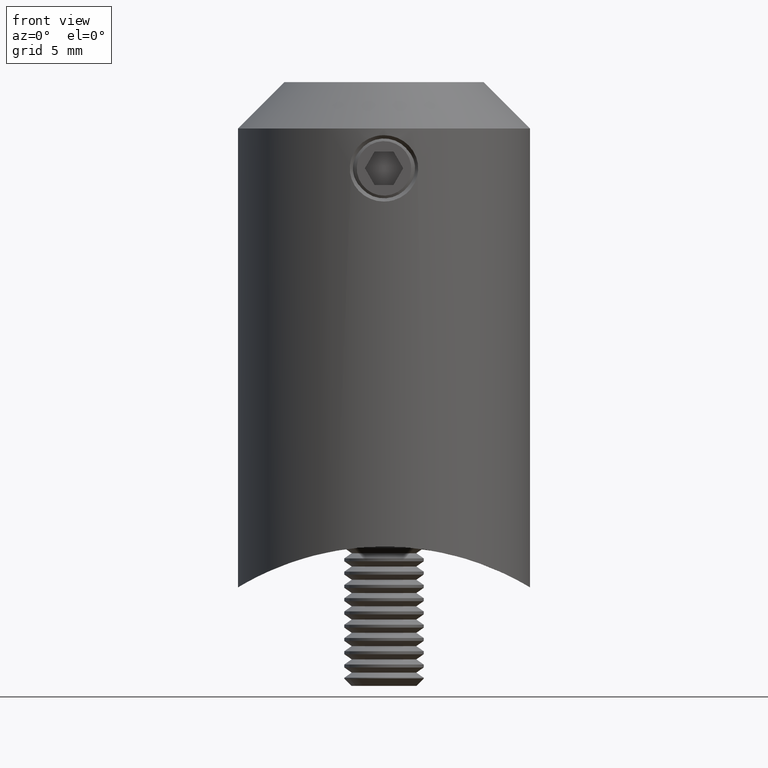
[diagram: clean part render]
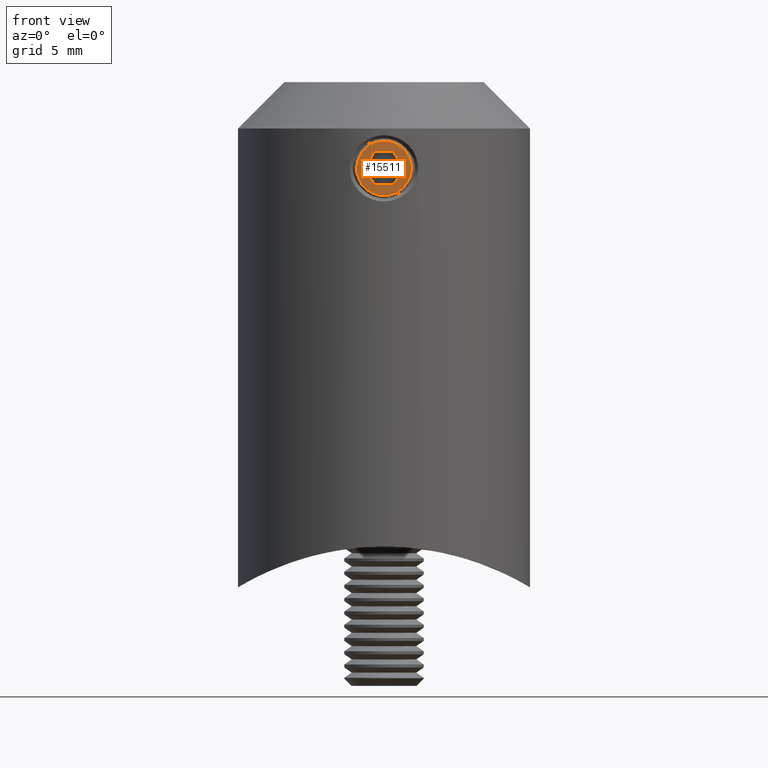
[diagram: same view with one face highlighted and labeled with its STEP entity id]
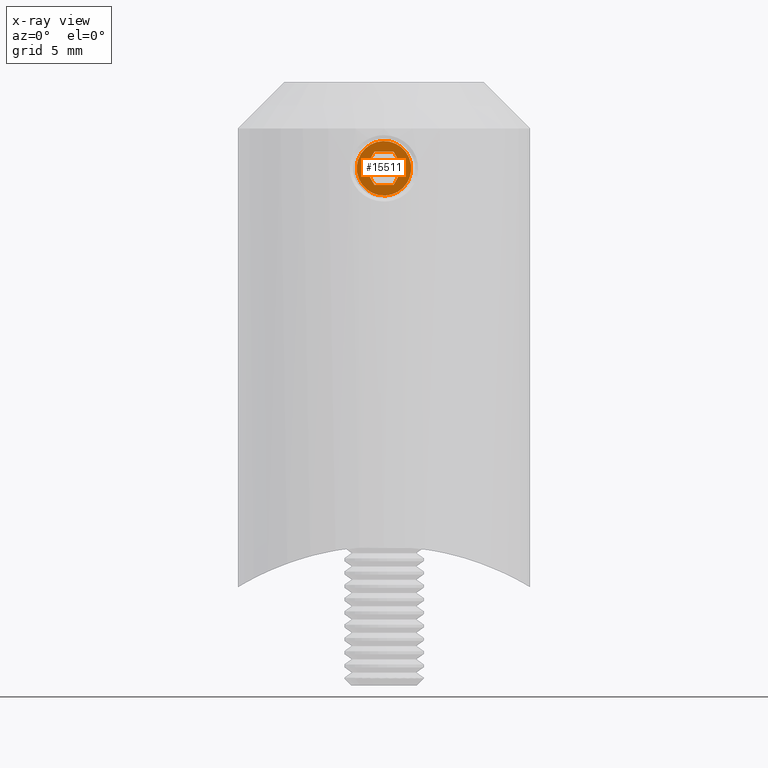
[diagram: x-ray of the same camera — body ghosted, the highlighted face saturated]
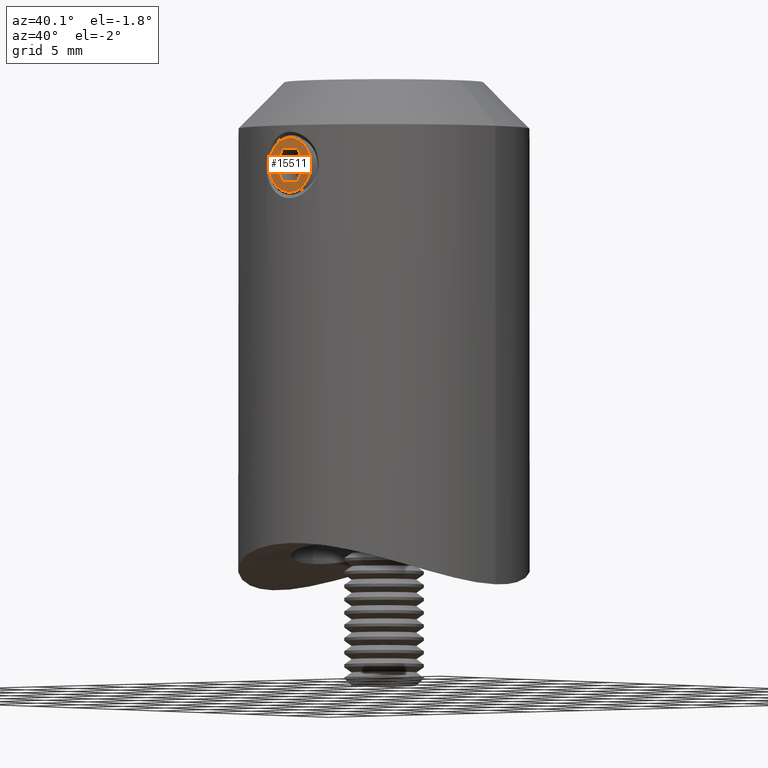
[diagram: same view with one face highlighted and labeled with its STEP entity id]
A machine part, front view. The second image highlights one B-rep face of the part: STEP entity #15511.
The next image is the same camera in x-ray: the body ghosted, the highlighted face saturated — about 0% of this face is hidden behind the body in this view.
A second angle (auxiliary view) of the same face is appended — the face is thin or edge-on in the first view.
In plain terms, the highlighted planar face has unit normal (-0, -1, 0).
Its self-contained STEP definition (entity closure, byte-faithful):
#456 = FACE_OUTER_BOUND ( 'NONE', #13698, .T. ) ;
#1257 = CIRCLE ( 'NONE', #5399, 2.055000000000000604 ) ;
#1601 = ORIENTED_EDGE ( 'NONE', *, *, #10894, .F. ) ;
#1974 = ORIENTED_EDGE ( 'NONE', *, *, #8468, .F. ) ;
#2259 = DIRECTION ( 'NONE',  ( 0.000000000000000000, -5.551115123125783935E-17, -1.000000000000000000 ) ) ;
#2526 = VECTOR ( 'NONE', #8169, 1000.000000000000000 ) ;
#2937 = EDGE_CURVE ( 'NONE', #10760, #17261, #10866, .T. ) ;
#3006 = VERTEX_POINT ( 'NONE', #15060 ) ;
#3376 = DIRECTION ( 'NONE',  ( -1.000000000000000000, 0.000000000000000000, 0.000000000000000000 ) ) ;
#3451 = VECTOR ( 'NONE', #11684, 1000.000000000000114 ) ;
#3499 = ORIENTED_EDGE ( 'NONE', *, *, #16337, .T. ) ;
#3515 = PLANE ( 'NONE',  #7130 ) ;
#3676 = VECTOR ( 'NONE', #4716, 1000.000000000000000 ) ;
#3684 = DIRECTION ( 'NONE',  ( -1.000000000000000000, -0.000000000000000000, 0.000000000000000000 ) ) ;
#3914 = DIRECTION ( 'NONE',  ( 0.000000000000000000, 5.551115123125783935E-17, 1.000000000000000000 ) ) ;
#3929 = CARTESIAN_POINT ( 'NONE',  ( 0.000000000000000000, -1.249999999999997558, 0.7216878364870310536 ) ) ;
#3994 = DIRECTION ( 'NONE',  ( 0.000000000000000000, -5.551115123125783935E-17, -1.000000000000000000 ) ) ;
#4212 = VECTOR ( 'NONE', #2259, 1000.000000000000000 ) ;
#4313 = LINE ( 'NONE', #16845, #8012 ) ;
#4716 = DIRECTION ( 'NONE',  ( 0.000000000000000000, -0.8660254037844383745, 0.5000000000000004441 ) ) ;
#4842 = VERTEX_POINT ( 'NONE', #17480 ) ;
#5015 = CARTESIAN_POINT ( 'NONE',  ( 0.000000000000000000, 0.000000000000000000, 0.000000000000000000 ) ) ;
#5399 = AXIS2_PLACEMENT_3D ( 'NONE', #8397, #16413, #3914 ) ;
#5645 = LINE ( 'NONE', #14178, #3676 ) ;
#6251 = EDGE_CURVE ( 'NONE', #7765, #9125, #20172, .T. ) ;
#7130 = AXIS2_PLACEMENT_3D ( 'NONE', #5015, #3376, #14284 ) ;
#7199 = LINE ( 'NONE', #14456, #2526 ) ;
#7765 = VERTEX_POINT ( 'NONE', #7890 ) ;
#7890 = CARTESIAN_POINT ( 'NONE',  ( 0.000000000000000000, -1.196571488238366919E-16, -2.055000000000001048 ) ) ;
#8012 = VECTOR ( 'NONE', #13734, 1000.000000000000000 ) ;
#8169 = DIRECTION ( 'NONE',  ( 0.000000000000000000, -0.8660254037844387076, -0.4999999999999998890 ) ) ;
#8301 = CARTESIAN_POINT ( 'NONE',  ( 0.000000000000000000, 0.000000000000000000, 0.000000000000000000 ) ) ;
#8397 = CARTESIAN_POINT ( 'NONE',  ( 0.000000000000000000, 0.000000000000000000, 0.000000000000000000 ) ) ;
#8468 = EDGE_CURVE ( 'NONE', #4842, #9644, #4313, .T. ) ;
#8698 = ORIENTED_EDGE ( 'NONE', *, *, #13358, .T. ) ;
#9125 = VERTEX_POINT ( 'NONE', #20301 ) ;
#9644 = VERTEX_POINT ( 'NONE', #9921 ) ;
#9779 = CARTESIAN_POINT ( 'NONE',  ( 0.000000000000000000, 1.249999999999999334, 0.7216878364870032980 ) ) ;
#9921 = CARTESIAN_POINT ( 'NONE',  ( 0.000000000000000000, 1.734723475976807094E-15, 1.443375672974062107 ) ) ;
#10117 = ORIENTED_EDGE ( 'NONE', *, *, #14671, .T. ) ;
#10760 = VERTEX_POINT ( 'NONE', #13419 ) ;
#10866 = LINE ( 'NONE', #17974, #3451 ) ;
#10894 = EDGE_CURVE ( 'NONE', #14384, #17261, #7199, .T. ) ;
#11631 = CARTESIAN_POINT ( 'NONE',  ( 0.000000000000000000, 1.250000000000007994, -0.7216878364870449314 ) ) ;
#11684 = DIRECTION ( 'NONE',  ( 0.000000000000000000, 0.8660254037844384856, -0.5000000000000003331 ) ) ;
#12090 = EDGE_CURVE ( 'NONE', #3006, #14384, #12844, .T. ) ;
#12844 = LINE ( 'NONE', #9779, #4212 ) ;
#12993 = CARTESIAN_POINT ( 'NONE',  ( 0.000000000000000000, 5.204170427930421283E-15, -1.443375672974079427 ) ) ;
#13358 = EDGE_CURVE ( 'NONE', #9125, #7765, #1257, .T. ) ;
#13419 = CARTESIAN_POINT ( 'NONE',  ( 0.000000000000000000, -1.250000000000001110, -0.7216878364870622509 ) ) ;
#13698 = EDGE_LOOP ( 'NONE', ( #19170, #8698 ) ) ;
#13734 = DIRECTION ( 'NONE',  ( 0.000000000000000000, 0.8660254037844387076, 0.4999999999999998890 ) ) ;
#14178 = CARTESIAN_POINT ( 'NONE',  ( 0.000000000000000000, 1.249999999999999334, 0.7216878364870032980 ) ) ;
#14284 = DIRECTION ( 'NONE',  ( 0.000000000000000000, 5.551115123125783935E-17, 1.000000000000000000 ) ) ;
#14384 = VERTEX_POINT ( 'NONE', #11631 ) ;
#14456 = CARTESIAN_POINT ( 'NONE',  ( 0.000000000000000000, 1.250000000000007994, -0.7216878364870449314 ) ) ;
#14666 = DIRECTION ( 'NONE',  ( 0.000000000000000000, 5.551115123125783935E-17, 1.000000000000000000 ) ) ;
#14671 = EDGE_CURVE ( 'NONE', #3006, #9644, #5645, .T. ) ;
#15060 = CARTESIAN_POINT ( 'NONE',  ( 0.000000000000000000, 1.249999999999999334, 0.7216878364870032980 ) ) ;
#15376 = AXIS2_PLACEMENT_3D ( 'NONE', #8301, #3684, #14666 ) ;
#15511 = ADVANCED_FACE ( 'NONE', ( #456, #18229 ), #3515, .T. ) ;
#16337 = EDGE_CURVE ( 'NONE', #4842, #10760, #16467, .T. ) ;
#16413 = DIRECTION ( 'NONE',  ( -1.000000000000000000, -0.000000000000000000, 0.000000000000000000 ) ) ;
#16467 = LINE ( 'NONE', #3929, #16722 ) ;
#16722 = VECTOR ( 'NONE', #3994, 1000.000000000000000 ) ;
#16845 = CARTESIAN_POINT ( 'NONE',  ( 0.000000000000000000, -1.249999999999997558, 0.7216878364870310536 ) ) ;
#16918 = ORIENTED_EDGE ( 'NONE', *, *, #2937, .T. ) ;
#16979 = ORIENTED_EDGE ( 'NONE', *, *, #12090, .F. ) ;
#17261 = VERTEX_POINT ( 'NONE', #12993 ) ;
#17480 = CARTESIAN_POINT ( 'NONE',  ( 0.000000000000000000, -1.249999999999997558, 0.7216878364870310536 ) ) ;
#17506 = EDGE_LOOP ( 'NONE', ( #16979, #10117, #1974, #3499, #16918, #1601 ) ) ;
#17974 = CARTESIAN_POINT ( 'NONE',  ( 0.000000000000000000, -1.250000000000001110, -0.7216878364870622509 ) ) ;
#18229 = FACE_BOUND ( 'NONE', #17506, .T. ) ;
#19170 = ORIENTED_EDGE ( 'NONE', *, *, #6251, .T. ) ;
#20172 = CIRCLE ( 'NONE', #15376, 2.055000000000000604 ) ;
#20301 = CARTESIAN_POINT ( 'NONE',  ( 0.000000000000000000, 3.836360810778951762E-16, 2.055000000000001048 ) ) ;